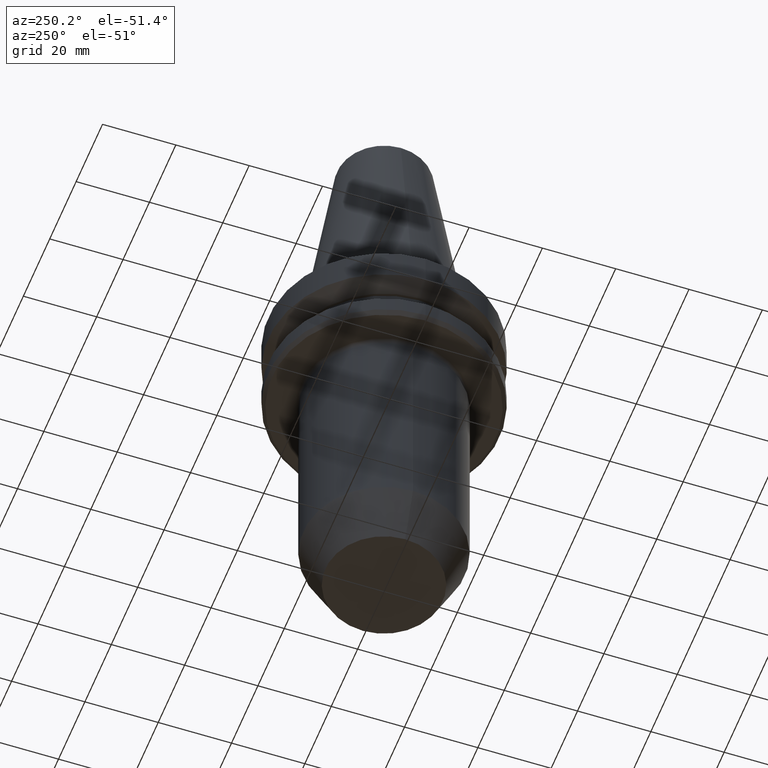
[diagram: clean part render]
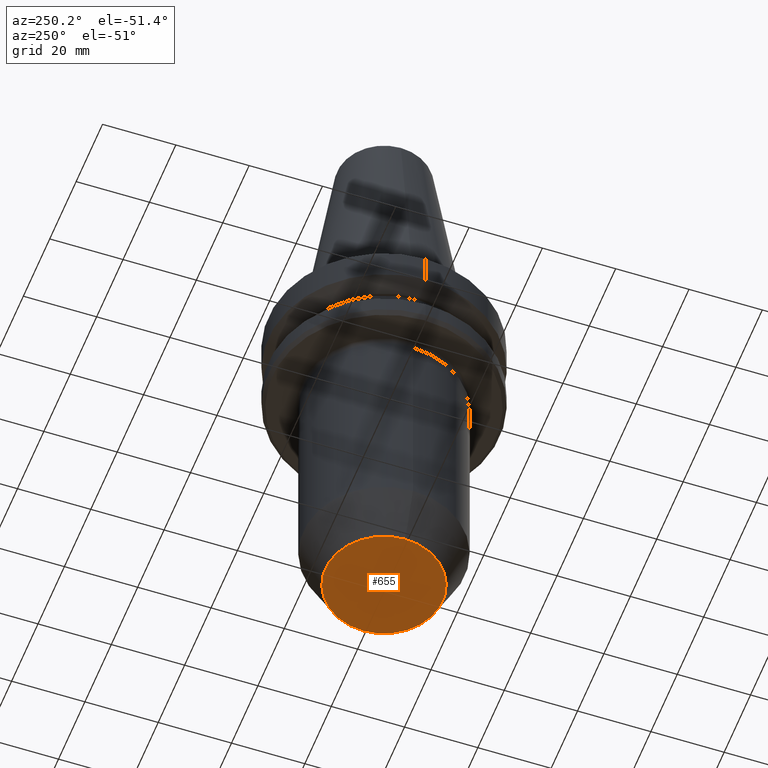
[diagram: same view with one face highlighted and labeled with its STEP entity id]
A machine part, auxiliary view. The second image highlights one B-rep face of the part: STEP entity #655.
In plain terms, the highlighted planar face has unit normal (0, -0, 1).
Its self-contained STEP definition (entity closure, byte-faithful):
#10 = PLANE ( 'NONE',  #373 ) ;
#126 = CARTESIAN_POINT ( 'NONE',  ( 0.0000000000000000000, 0.0000000000000000000, -99.31128678834039600 ) ) ;
#156 = AXIS2_PLACEMENT_3D ( 'NONE', #716, #223, #793 ) ;
#158 = AXIS2_PLACEMENT_3D ( 'NONE', #126, #714, #220 ) ;
#220 = DIRECTION ( 'NONE',  ( 1.000000000000000000, 0.0000000000000000000, 0.0000000000000000000 ) ) ;
#223 = DIRECTION ( 'NONE',  ( -0.0000000000000000000, -0.0000000000000000000, 1.000000000000000000 ) ) ;
#231 = CIRCLE ( 'NONE', #158, 16.00000000000000000 ) ;
#371 = DIRECTION ( 'NONE',  ( 0.0000000000000000000, -0.0000000000000000000, 1.000000000000000000 ) ) ;
#373 = AXIS2_PLACEMENT_3D ( 'NONE', #957, #371, #621 ) ;
#381 = VERTEX_POINT ( 'NONE', #668 ) ;
#589 = ORIENTED_EDGE ( 'NONE', *, *, #891, .F. ) ;
#621 = DIRECTION ( 'NONE',  ( 1.000000000000000000, 0.0000000000000000000, 0.0000000000000000000 ) ) ;
#634 = EDGE_LOOP ( 'NONE', ( #936, #589 ) ) ;
#655 = ADVANCED_FACE ( 'NONE', ( #862 ), #10, .F. ) ;
#668 = CARTESIAN_POINT ( 'NONE',  ( 16.00000000000000000, 0.0000000000000000000, -99.31128678834039600 ) ) ;
#692 = CARTESIAN_POINT ( 'NONE',  ( -16.00000000000000000, 2.326828918379971000E-015, -99.31128678834039600 ) ) ;
#714 = DIRECTION ( 'NONE',  ( -0.0000000000000000000, -0.0000000000000000000, 1.000000000000000000 ) ) ;
#716 = CARTESIAN_POINT ( 'NONE',  ( 0.0000000000000000000, 0.0000000000000000000, -99.31128678834039600 ) ) ;
#776 = CIRCLE ( 'NONE', #156, 16.00000000000000000 ) ;
#782 = VERTEX_POINT ( 'NONE', #692 ) ;
#793 = DIRECTION ( 'NONE',  ( 1.000000000000000000, 0.0000000000000000000, 0.0000000000000000000 ) ) ;
#862 = FACE_OUTER_BOUND ( 'NONE', #634, .T. ) ;
#882 = EDGE_CURVE ( 'NONE', #381, #782, #231, .T. ) ;
#891 = EDGE_CURVE ( 'NONE', #782, #381, #776, .T. ) ;
#936 = ORIENTED_EDGE ( 'NONE', *, *, #882, .F. ) ;
#957 = CARTESIAN_POINT ( 'NONE',  ( 0.0000000000000000000, 16.00000000000000000, -99.31128678834039600 ) ) ;